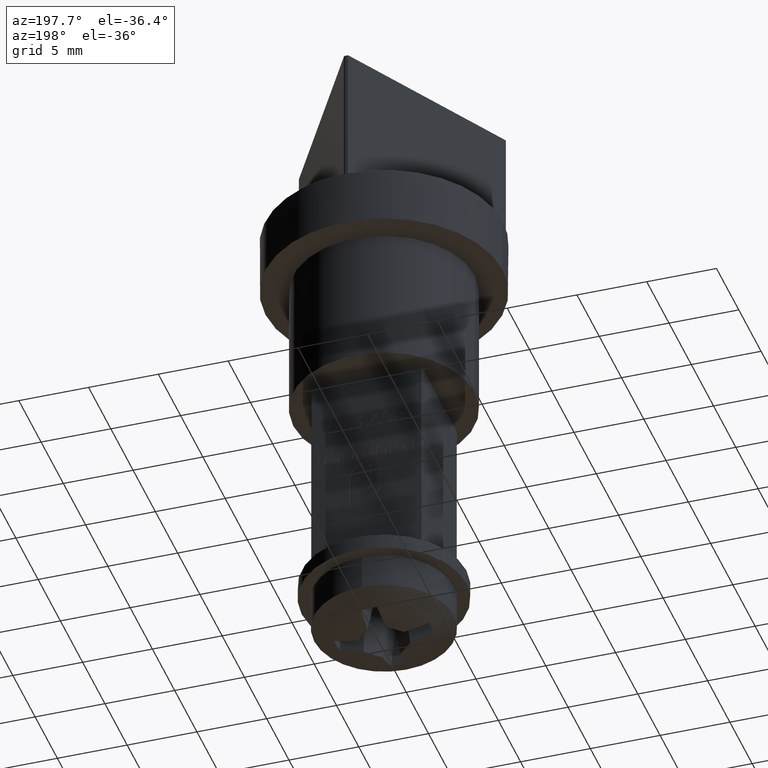
[diagram: clean part render]
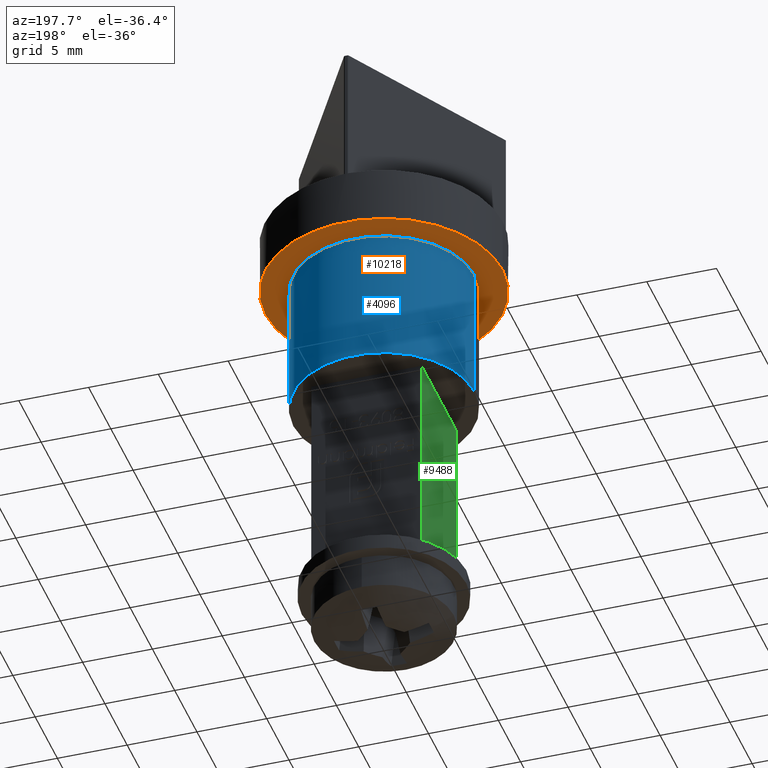
[diagram: same view with three faces highlighted in distinct colors, each labeled with its STEP entity id]
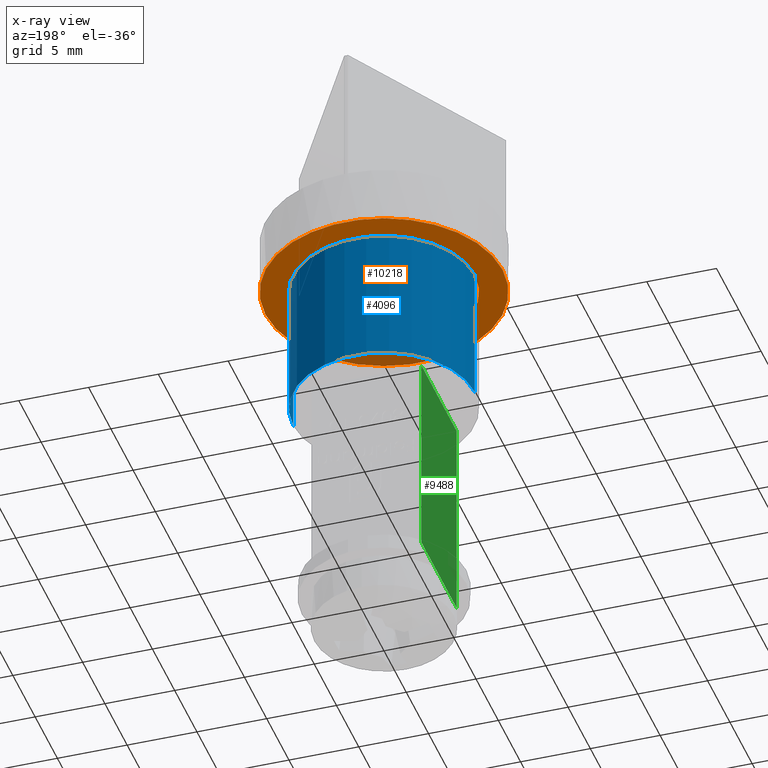
[diagram: x-ray of the same camera — body ghosted, the three highlighted faces saturated]
A machine part, auxiliary view with three faces highlighted in distinct colors.
The next image is the same camera in x-ray (body ghosted, the three faces saturated) — at least one of them is partly hidden behind the body in this view.
Their STEP definitions:

[orange] entity #10218 — the highlighted planar face has unit normal (0, 0, -1).
#516 = CARTESIAN_POINT ( 'NONE',  ( -8.499999999999996447, 0.000000000000000000, 2.900000000000001243 ) ) ;
#714 = DIRECTION ( 'NONE',  ( 1.000000000000000000, 0.000000000000000000, 0.000000000000000000 ) ) ;
#781 = ORIENTED_EDGE ( 'NONE', *, *, #2744, .T. ) ;
#1097 = FACE_BOUND ( 'NONE', #6954, .T. ) ;
#1977 = VERTEX_POINT ( 'NONE', #8219 ) ;
#2744 = EDGE_CURVE ( 'NONE', #1977, #10449, #10719, .T. ) ;
#3450 = AXIS2_PLACEMENT_3D ( 'NONE', #13309, #5835, #714 ) ;
#3524 = VERTEX_POINT ( 'NONE', #3578 ) ;
#3540 = AXIS2_PLACEMENT_3D ( 'NONE', #11726, #10359, #7933 ) ;
#3578 = CARTESIAN_POINT ( 'NONE',  ( 8.499999999999996447, 1.040949779275249943E-15, 2.900000000000001243 ) ) ;
#3789 = VERTEX_POINT ( 'NONE', #516 ) ;
#4076 = CARTESIAN_POINT ( 'NONE',  ( 0.000000000000000000, 8.499999999999996447, 2.900000000000000799 ) ) ;
#4749 = ORIENTED_EDGE ( 'NONE', *, *, #7966, .F. ) ;
#4803 = CIRCLE ( 'NONE', #3450, 8.499999999999996447 ) ;
#5194 = DIRECTION ( 'NONE',  ( 0.000000000000000000, 0.000000000000000000, -1.000000000000000000 ) ) ;
#5532 = DIRECTION ( 'NONE',  ( -0.000000000000000000, -0.000000000000000000, 1.000000000000000000 ) ) ;
#5835 = DIRECTION ( 'NONE',  ( -0.000000000000000000, -0.000000000000000000, 1.000000000000000000 ) ) ;
#6210 = DIRECTION ( 'NONE',  ( 1.000000000000000000, 0.000000000000000000, 0.000000000000000000 ) ) ;
#6954 = EDGE_LOOP ( 'NONE', ( #16225, #781 ) ) ;
#7467 = CARTESIAN_POINT ( 'NONE',  ( 0.000000000000000000, 0.000000000000000000, 2.900000000000001243 ) ) ;
#7470 = CIRCLE ( 'NONE', #11738, 8.499999999999996447 ) ;
#7552 = PLANE ( 'NONE',  #13107 ) ;
#7625 = DIRECTION ( 'NONE',  ( -0.000000000000000000, -0.000000000000000000, 1.000000000000000000 ) ) ;
#7822 = DIRECTION ( 'NONE',  ( -1.000000000000000000, 0.000000000000000000, -0.000000000000000000 ) ) ;
#7933 = DIRECTION ( 'NONE',  ( 1.000000000000000000, 0.000000000000000000, 0.000000000000000000 ) ) ;
#7966 = EDGE_CURVE ( 'NONE', #3524, #3789, #7470, .T. ) ;
#8219 = CARTESIAN_POINT ( 'NONE',  ( -6.500000000000000000, 7.960204194457795477E-16, 2.900000000000000799 ) ) ;
#8958 = FACE_OUTER_BOUND ( 'NONE', #15141, .T. ) ;
#10218 = ADVANCED_FACE ( 'NONE', ( #1097, #8958 ), #7552, .T. ) ;
#10359 = DIRECTION ( 'NONE',  ( -0.000000000000000000, -0.000000000000000000, 1.000000000000000000 ) ) ;
#10449 = VERTEX_POINT ( 'NONE', #14459 ) ;
#10719 = CIRCLE ( 'NONE', #15767, 6.500000000000000000 ) ;
#10748 = CIRCLE ( 'NONE', #3540, 6.500000000000000000 ) ;
#11430 = EDGE_CURVE ( 'NONE', #10449, #1977, #10748, .T. ) ;
#11726 = CARTESIAN_POINT ( 'NONE',  ( 0.000000000000000000, 0.000000000000000000, 2.900000000000000799 ) ) ;
#11738 = AXIS2_PLACEMENT_3D ( 'NONE', #7467, #7625, #6210 ) ;
#11962 = EDGE_CURVE ( 'NONE', #3789, #3524, #4803, .T. ) ;
#12972 = CARTESIAN_POINT ( 'NONE',  ( 0.000000000000000000, 0.000000000000000000, 2.900000000000000799 ) ) ;
#13036 = DIRECTION ( 'NONE',  ( 1.000000000000000000, 0.000000000000000000, 0.000000000000000000 ) ) ;
#13107 = AXIS2_PLACEMENT_3D ( 'NONE', #4076, #5194, #7822 ) ;
#13198 = ORIENTED_EDGE ( 'NONE', *, *, #11962, .F. ) ;
#13309 = CARTESIAN_POINT ( 'NONE',  ( 0.000000000000000000, 0.000000000000000000, 2.900000000000001243 ) ) ;
#14459 = CARTESIAN_POINT ( 'NONE',  ( 6.500000000000000000, 0.000000000000000000, 2.900000000000000799 ) ) ;
#15141 = EDGE_LOOP ( 'NONE', ( #13198, #4749 ) ) ;
#15767 = AXIS2_PLACEMENT_3D ( 'NONE', #12972, #5532, #13036 ) ;
#16225 = ORIENTED_EDGE ( 'NONE', *, *, #11430, .T. ) ;

[blue] entity #4096 — the highlighted cylindrical surface (partial cylindrical patch) has radius 6.5 mm, axis along (0, 0, 1).
#47 = DIRECTION ( 'NONE',  ( -0.000000000000000000, -0.000000000000000000, 1.000000000000000000 ) ) ;
#109 = CARTESIAN_POINT ( 'NONE',  ( -6.500000000000000000, 7.960204194457795477E-16, 0.000000000000000000 ) ) ;
#324 = VECTOR ( 'NONE', #13762, 1000.000000000000000 ) ;
#422 = CARTESIAN_POINT ( 'NONE',  ( 6.500000000000000000, 0.000000000000000000, -7.000000000000000000 ) ) ;
#924 = DIRECTION ( 'NONE',  ( 1.000000000000000000, 0.000000000000000000, 0.000000000000000000 ) ) ;
#1228 = CYLINDRICAL_SURFACE ( 'NONE', #11117, 6.500000000000000000 ) ;
#1550 = CARTESIAN_POINT ( 'NONE',  ( 0.000000000000000000, 0.000000000000000000, -7.000000000000000000 ) ) ;
#1977 = VERTEX_POINT ( 'NONE', #8219 ) ;
#2288 = VECTOR ( 'NONE', #47, 1000.000000000000000 ) ;
#2448 = LINE ( 'NONE', #6161, #324 ) ;
#2471 = AXIS2_PLACEMENT_3D ( 'NONE', #1550, #10361, #13941 ) ;
#3540 = AXIS2_PLACEMENT_3D ( 'NONE', #11726, #10359, #7933 ) ;
#3722 = CARTESIAN_POINT ( 'NONE',  ( -6.500000000000000000, 7.960204194457795477E-16, -7.000000000000000000 ) ) ;
#4096 = ADVANCED_FACE ( 'NONE', ( #5573 ), #1228, .T. ) ;
#4600 = DIRECTION ( 'NONE',  ( -0.000000000000000000, -0.000000000000000000, 1.000000000000000000 ) ) ;
#4758 = EDGE_LOOP ( 'NONE', ( #13788, #6644, #12076, #12941 ) ) ;
#5236 = CIRCLE ( 'NONE', #2471, 6.500000000000000000 ) ;
#5573 = FACE_OUTER_BOUND ( 'NONE', #4758, .T. ) ;
#5585 = VERTEX_POINT ( 'NONE', #422 ) ;
#6130 = VERTEX_POINT ( 'NONE', #3722 ) ;
#6161 = CARTESIAN_POINT ( 'NONE',  ( 6.500000000000000000, 0.000000000000000000, 0.000000000000000000 ) ) ;
#6644 = ORIENTED_EDGE ( 'NONE', *, *, #9557, .T. ) ;
#7189 = CARTESIAN_POINT ( 'NONE',  ( 0.000000000000000000, 0.000000000000000000, 0.000000000000000000 ) ) ;
#7933 = DIRECTION ( 'NONE',  ( 1.000000000000000000, 0.000000000000000000, 0.000000000000000000 ) ) ;
#8219 = CARTESIAN_POINT ( 'NONE',  ( -6.500000000000000000, 7.960204194457795477E-16, 2.900000000000000799 ) ) ;
#8770 = LINE ( 'NONE', #109, #2288 ) ;
#9557 = EDGE_CURVE ( 'NONE', #6130, #1977, #8770, .T. ) ;
#10237 = EDGE_CURVE ( 'NONE', #5585, #6130, #5236, .T. ) ;
#10359 = DIRECTION ( 'NONE',  ( -0.000000000000000000, -0.000000000000000000, 1.000000000000000000 ) ) ;
#10361 = DIRECTION ( 'NONE',  ( -0.000000000000000000, -0.000000000000000000, 1.000000000000000000 ) ) ;
#10449 = VERTEX_POINT ( 'NONE', #14459 ) ;
#10748 = CIRCLE ( 'NONE', #3540, 6.500000000000000000 ) ;
#11117 = AXIS2_PLACEMENT_3D ( 'NONE', #7189, #4600, #924 ) ;
#11245 = EDGE_CURVE ( 'NONE', #5585, #10449, #2448, .T. ) ;
#11430 = EDGE_CURVE ( 'NONE', #10449, #1977, #10748, .T. ) ;
#11726 = CARTESIAN_POINT ( 'NONE',  ( 0.000000000000000000, 0.000000000000000000, 2.900000000000000799 ) ) ;
#12076 = ORIENTED_EDGE ( 'NONE', *, *, #11430, .F. ) ;
#12941 = ORIENTED_EDGE ( 'NONE', *, *, #11245, .F. ) ;
#13762 = DIRECTION ( 'NONE',  ( -0.000000000000000000, -0.000000000000000000, 1.000000000000000000 ) ) ;
#13788 = ORIENTED_EDGE ( 'NONE', *, *, #10237, .T. ) ;
#13941 = DIRECTION ( 'NONE',  ( 1.000000000000000000, 0.000000000000000000, 0.000000000000000000 ) ) ;
#14459 = CARTESIAN_POINT ( 'NONE',  ( 6.500000000000000000, 0.000000000000000000, 2.900000000000000799 ) ) ;

[green] entity #9488 — the highlighted planar face has unit normal (1, 0, 0).
#85 = ORIENTED_EDGE ( 'NONE', *, *, #206, .T. ) ;
#206 = EDGE_CURVE ( 'NONE', #4012, #15046, #13594, .T. ) ;
#452 = CARTESIAN_POINT ( 'NONE',  ( -3.950000000000001066, 3.950000000000001066, -22.00000000000000000 ) ) ;
#707 = CARTESIAN_POINT ( 'NONE',  ( -3.950000000000001066, 3.950000000000001066, -22.00000000000000000 ) ) ;
#964 = DIRECTION ( 'NONE',  ( -1.097926250618232273E-16, 1.000000000000000000, -0.000000000000000000 ) ) ;
#1215 = ORIENTED_EDGE ( 'NONE', *, *, #6403, .T. ) ;
#1418 = VECTOR ( 'NONE', #14434, 1000.000000000000000 ) ;
#1805 = LINE ( 'NONE', #9260, #1418 ) ;
#1941 = AXIS2_PLACEMENT_3D ( 'NONE', #13697, #5041, #7403 ) ;
#1998 = DIRECTION ( 'NONE',  ( -0.000000000000000000, -0.000000000000000000, 1.000000000000000000 ) ) ;
#4012 = VERTEX_POINT ( 'NONE', #8438 ) ;
#4639 = CARTESIAN_POINT ( 'NONE',  ( -3.950000000000001066, 3.950000000000001066, -7.000000000000000000 ) ) ;
#5041 = DIRECTION ( 'NONE',  ( 1.000000000000000000, 1.097926250618232396E-16, 0.000000000000000000 ) ) ;
#5489 = CARTESIAN_POINT ( 'NONE',  ( -3.950000000000000178, -3.949999999999999734, -22.00000000000000000 ) ) ;
#6244 = PLANE ( 'NONE',  #1941 ) ;
#6323 = CARTESIAN_POINT ( 'NONE',  ( -3.950000000000001066, 3.950000000000001066, -22.00000000000000000 ) ) ;
#6403 = EDGE_CURVE ( 'NONE', #7202, #4012, #1805, .T. ) ;
#6471 = EDGE_LOOP ( 'NONE', ( #85, #12189, #8509, #1215 ) ) ;
#6909 = VERTEX_POINT ( 'NONE', #6323 ) ;
#7144 = VECTOR ( 'NONE', #1998, 1000.000000000000000 ) ;
#7202 = VERTEX_POINT ( 'NONE', #5489 ) ;
#7403 = DIRECTION ( 'NONE',  ( -1.097926250618232396E-16, 1.000000000000000000, 0.000000000000000000 ) ) ;
#7742 = LINE ( 'NONE', #707, #7144 ) ;
#8184 = EDGE_CURVE ( 'NONE', #7202, #6909, #12962, .T. ) ;
#8438 = CARTESIAN_POINT ( 'NONE',  ( -3.950000000000000178, -3.949999999999999734, -7.000000000000000000 ) ) ;
#8509 = ORIENTED_EDGE ( 'NONE', *, *, #8184, .F. ) ;
#9260 = CARTESIAN_POINT ( 'NONE',  ( -3.950000000000000178, -3.949999999999999734, -22.00000000000000000 ) ) ;
#9488 = ADVANCED_FACE ( 'NONE', ( #13269 ), #6244, .F. ) ;
#9890 = VECTOR ( 'NONE', #964, 1000.000000000000000 ) ;
#10466 = CARTESIAN_POINT ( 'NONE',  ( -3.950000000000001066, 3.950000000000001066, -7.000000000000000000 ) ) ;
#11236 = VECTOR ( 'NONE', #15482, 1000.000000000000000 ) ;
#12189 = ORIENTED_EDGE ( 'NONE', *, *, #15698, .F. ) ;
#12962 = LINE ( 'NONE', #452, #11236 ) ;
#13269 = FACE_OUTER_BOUND ( 'NONE', #6471, .T. ) ;
#13594 = LINE ( 'NONE', #4639, #9890 ) ;
#13697 = CARTESIAN_POINT ( 'NONE',  ( -3.950000000000001066, 3.950000000000001066, -22.00000000000000000 ) ) ;
#14434 = DIRECTION ( 'NONE',  ( -0.000000000000000000, -0.000000000000000000, 1.000000000000000000 ) ) ;
#15046 = VERTEX_POINT ( 'NONE', #10466 ) ;
#15482 = DIRECTION ( 'NONE',  ( -1.097926250618232273E-16, 1.000000000000000000, -0.000000000000000000 ) ) ;
#15698 = EDGE_CURVE ( 'NONE', #6909, #15046, #7742, .T. ) ;